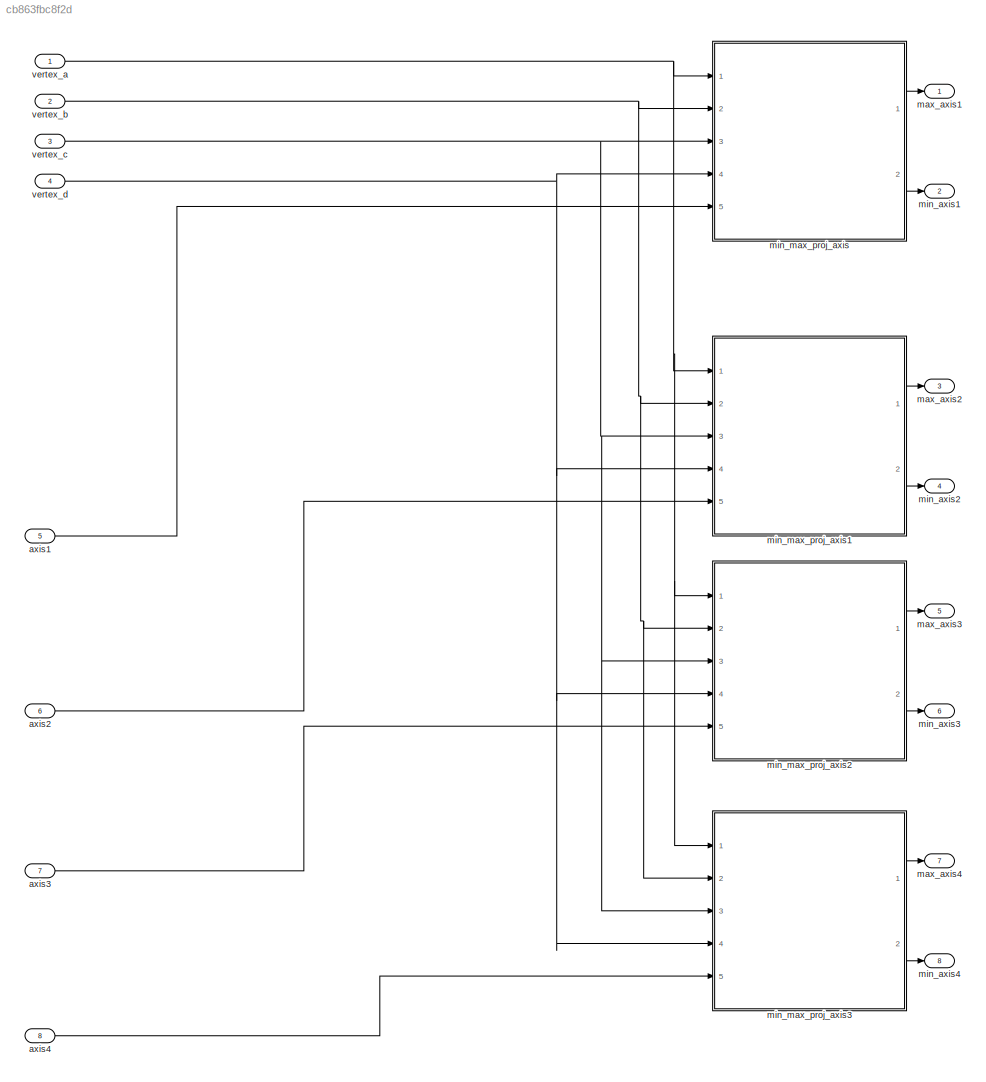
MODEL slx_cb863fbc8f2d
KIND model
CONFIG AbsTol = auto
CONFIG EnableMultiTasking = off
CONFIG FixedStep = auto
CONFIG MaxStep = auto
CONFIG MinStep = auto
CONFIG RelTol = 1e-3
CONFIG SampleTimeConstraint = Unconstrained
CONFIG Solver = VariableStepAuto
CONFIG SolverName = VariableStepAuto
CONFIG StartTime = 0.0
CONFIG StopTime = 10.0
BLOCK [Inport] axis1
  IconDisplay = Port number
  OutDataTypeStr = double
  Port = 5
  PortDimensions = 2
  SampleTime = 0
  SamplingMode = Sample based
  SignalType = real
BLOCK [Inport] axis2
  IconDisplay = Port number
  OutDataTypeStr = double
  Port = 6
  PortDimensions = 2
  SampleTime = 0
  SamplingMode = Sample based
  SignalType = real
BLOCK [Inport] axis3
  IconDisplay = Port number
  OutDataTypeStr = double
  Port = 7
  PortDimensions = 2
  SampleTime = 0
  SamplingMode = Sample based
  SignalType = real
BLOCK [Inport] axis4
  IconDisplay = Port number
  OutDataTypeStr = double
  Port = 8
  PortDimensions = 2
  SampleTime = 0
  SamplingMode = Sample based
  SignalType = real
BLOCK [Outport] max_axis1
  IconDisplay = Port number
  OutDataTypeStr = double
  PortDimensions = 1
  SampleTime = 0
  SamplingMode = Sample based
  SignalType = real
BLOCK [Outport] max_axis2
  IconDisplay = Port number
  OutDataTypeStr = double
  Port = 3
  PortDimensions = 1
  SampleTime = 0
  SamplingMode = Sample based
  SignalType = real
BLOCK [Outport] max_axis3
  IconDisplay = Port number
  OutDataTypeStr = double
  Port = 5
  PortDimensions = 1
  SampleTime = 0
  SamplingMode = Sample based
  SignalType = real
BLOCK [Outport] max_axis4
  IconDisplay = Port number
  OutDataTypeStr = double
  Port = 7
  PortDimensions = 1
  SampleTime = 0
  SamplingMode = Sample based
  SignalType = real
BLOCK [Outport] min_axis1
  IconDisplay = Port number
  OutDataTypeStr = double
  Port = 2
  PortDimensions = 1
  SampleTime = 0
  SamplingMode = Sample based
  SignalType = real
BLOCK [Outport] min_axis2
  IconDisplay = Port number
  OutDataTypeStr = double
  Port = 4
  PortDimensions = 1
  SampleTime = 0
  SamplingMode = Sample based
  SignalType = real
BLOCK [Outport] min_axis3
  IconDisplay = Port number
  OutDataTypeStr = double
  Port = 6
  PortDimensions = 1
  SampleTime = 0
  SamplingMode = Sample based
  SignalType = real
BLOCK [Outport] min_axis4
  IconDisplay = Port number
  OutDataTypeStr = double
  Port = 8
  PortDimensions = 1
  SampleTime = 0
  SamplingMode = Sample based
  SignalType = real
BLOCK [ModelReference] min_max_proj_axis
  ModelNameDialog = min_max_proj_axis
  ModelReferenceVersion = 1.18
  Ports = [5, 2]
BLOCK [ModelReference] min_max_proj_axis1
  ModelNameDialog = min_max_proj_axis
  ModelReferenceVersion = 1.18
  Ports = [5, 2]
BLOCK [ModelReference] min_max_proj_axis2
  ModelNameDialog = min_max_proj_axis
  ModelReferenceVersion = 1.18
  Ports = [5, 2]
BLOCK [ModelReference] min_max_proj_axis3
  ModelNameDialog = min_max_proj_axis
  ModelReferenceVersion = 1.18
  Ports = [5, 2]
BLOCK [Inport] vertex_a
  IconDisplay = Port number
  OutDataTypeStr = double
  PortDimensions = 2
  SampleTime = 0
  SamplingMode = Sample based
  SignalType = real
BLOCK [Inport] vertex_b
  IconDisplay = Port number
  OutDataTypeStr = double
  Port = 2
  PortDimensions = 2
  SampleTime = 0
  SamplingMode = Sample based
  SignalType = real
BLOCK [Inport] vertex_c
  IconDisplay = Port number
  OutDataTypeStr = double
  Port = 3
  PortDimensions = 2
  SampleTime = 0
  SamplingMode = Sample based
  SignalType = real
BLOCK [Inport] vertex_d
  IconDisplay = Port number
  OutDataTypeStr = double
  Port = 4
  PortDimensions = 2
  SampleTime = 0
  SamplingMode = Sample based
  SignalType = real
LINE axis1:1 -> min_max_proj_axis:5
LINE axis2:1 -> min_max_proj_axis1:5
LINE axis3:1 -> min_max_proj_axis2:5
LINE axis4:1 -> min_max_proj_axis3:5
LINE min_max_proj_axis1:1 -> max_axis2:1
LINE min_max_proj_axis1:2 -> min_axis2:1
LINE min_max_proj_axis2:1 -> max_axis3:1
LINE min_max_proj_axis2:2 -> min_axis3:1
LINE min_max_proj_axis3:1 -> max_axis4:1
LINE min_max_proj_axis3:2 -> min_axis4:1
LINE min_max_proj_axis:1 -> max_axis1:1
LINE min_max_proj_axis:2 -> min_axis1:1
NET vertex_a:1 -> min_max_proj_axis1:1, min_max_proj_axis2:1, min_max_proj_axis3:1, min_max_proj_axis:1
NET vertex_b:1 -> min_max_proj_axis1:2, min_max_proj_axis2:2, min_max_proj_axis3:2, min_max_proj_axis:2
NET vertex_c:1 -> min_max_proj_axis1:3, min_max_proj_axis2:3, min_max_proj_axis3:3, min_max_proj_axis:3
NET vertex_d:1 -> min_max_proj_axis1:4, min_max_proj_axis2:4, min_max_proj_axis3:4, min_max_proj_axis:4
note: NET lines group one-source signal fan-out (src -> all destinations, sorted); 1:1 wires keep LINE
